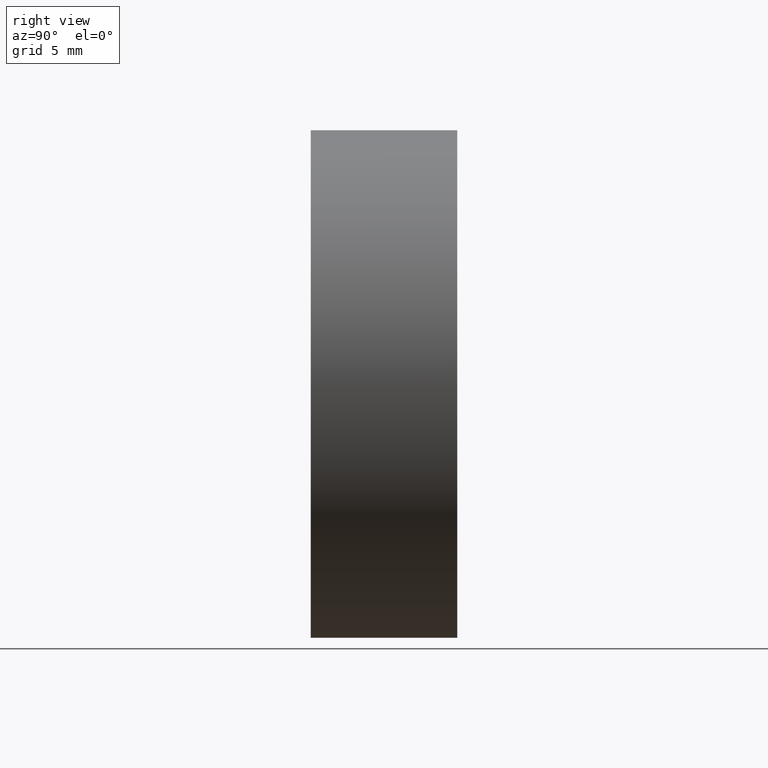
[diagram: clean part render]
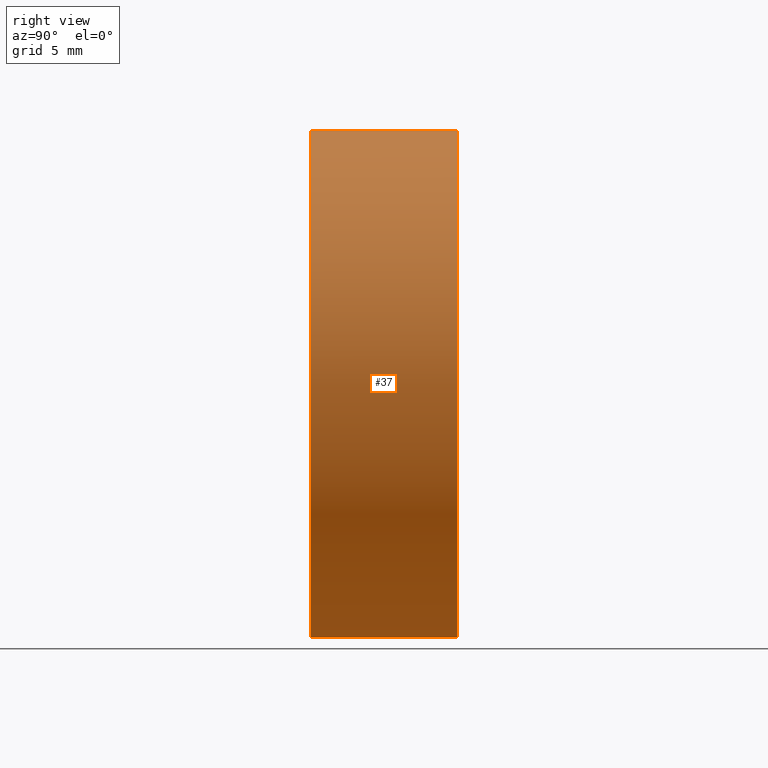
[diagram: same view with one face highlighted and labeled with its STEP entity id]
A machine part, right view. The second image highlights one B-rep face of the part: STEP entity #37.
In plain terms, the highlighted cylindrical surface (partial cylindrical patch) has radius 19.05 mm, axis along (-0, 1, -0).
Its self-contained STEP definition (entity closure, byte-faithful):
#19 = CIRCLE ( 'NONE', #89, 19.05000000000000400 ) ;
#23 = CARTESIAN_POINT ( 'NONE',  ( 0.0000000000000000000, 60.02082041425541100, 0.0000000000000000000 ) ) ;
#31 = DIRECTION ( 'NONE',  ( 0.0000000000000000000, 0.0000000000000000000, 1.000000000000000000 ) ) ;
#37 = ADVANCED_FACE ( 'NONE', ( #198 ), #316, .T. ) ;
#47 = DIRECTION ( 'NONE',  ( 0.0000000000000000000, 0.0000000000000000000, 1.000000000000000000 ) ) ;
#70 = CARTESIAN_POINT ( 'NONE',  ( 0.0000000000000000000, 10.99999999999999600, 0.0000000000000000000 ) ) ;
#76 = CARTESIAN_POINT ( 'NONE',  ( 0.0000000000000000000, 10.99999999999999600, 19.05000000000000400 ) ) ;
#89 = AXIS2_PLACEMENT_3D ( 'NONE', #70, #91, #371 ) ;
#91 = DIRECTION ( 'NONE',  ( -0.0000000000000000000, 1.000000000000000000, -0.0000000000000000000 ) ) ;
#103 = CIRCLE ( 'NONE', #148, 19.05000000000000400 ) ;
#105 = EDGE_LOOP ( 'NONE', ( #422, #248, #424, #339 ) ) ;
#148 = AXIS2_PLACEMENT_3D ( 'NONE', #405, #315, #31 ) ;
#151 = VERTEX_POINT ( 'NONE', #76 ) ;
#160 = DIRECTION ( 'NONE',  ( -0.0000000000000000000, 1.000000000000000000, -0.0000000000000000000 ) ) ;
#172 = CARTESIAN_POINT ( 'NONE',  ( 0.0000000000000000000, 60.02082041425541100, 19.05000000000000400 ) ) ;
#179 = CARTESIAN_POINT ( 'NONE',  ( 2.332952152375708400E-015, 60.02082041425541100, -19.05000000000000400 ) ) ;
#188 = DIRECTION ( 'NONE',  ( -0.0000000000000000000, 1.000000000000000000, -0.0000000000000000000 ) ) ;
#189 = CARTESIAN_POINT ( 'NONE',  ( 0.0000000000000000000, 0.0000000000000000000, 19.05000000000000400 ) ) ;
#195 = DIRECTION ( 'NONE',  ( -0.0000000000000000000, 1.000000000000000000, -0.0000000000000000000 ) ) ;
#198 = FACE_OUTER_BOUND ( 'NONE', #105, .T. ) ;
#218 = CARTESIAN_POINT ( 'NONE',  ( 2.332952152375708400E-015, 10.99999999999999600, -19.05000000000000400 ) ) ;
#248 = ORIENTED_EDGE ( 'NONE', *, *, #379, .T. ) ;
#284 = LINE ( 'NONE', #172, #375 ) ;
#288 = CARTESIAN_POINT ( 'NONE',  ( 2.332952152375708400E-015, 0.0000000000000000000, -19.05000000000000400 ) ) ;
#307 = AXIS2_PLACEMENT_3D ( 'NONE', #23, #160, #47 ) ;
#315 = DIRECTION ( 'NONE',  ( -0.0000000000000000000, 1.000000000000000000, -0.0000000000000000000 ) ) ;
#316 = CYLINDRICAL_SURFACE ( 'NONE', #307, 19.05000000000000400 ) ;
#339 = ORIENTED_EDGE ( 'NONE', *, *, #406, .F. ) ;
#344 = VERTEX_POINT ( 'NONE', #288 ) ;
#371 = DIRECTION ( 'NONE',  ( 0.0000000000000000000, 0.0000000000000000000, 1.000000000000000000 ) ) ;
#374 = VERTEX_POINT ( 'NONE', #189 ) ;
#375 = VECTOR ( 'NONE', #195, 1000.000000000000000 ) ;
#376 = EDGE_CURVE ( 'NONE', #374, #344, #103, .T. ) ;
#379 = EDGE_CURVE ( 'NONE', #344, #387, #393, .T. ) ;
#387 = VERTEX_POINT ( 'NONE', #218 ) ;
#391 = EDGE_CURVE ( 'NONE', #151, #387, #19, .T. ) ;
#393 = LINE ( 'NONE', #179, #417 ) ;
#405 = CARTESIAN_POINT ( 'NONE',  ( 0.0000000000000000000, 0.0000000000000000000, 0.0000000000000000000 ) ) ;
#406 = EDGE_CURVE ( 'NONE', #374, #151, #284, .T. ) ;
#417 = VECTOR ( 'NONE', #188, 1000.000000000000000 ) ;
#422 = ORIENTED_EDGE ( 'NONE', *, *, #376, .T. ) ;
#424 = ORIENTED_EDGE ( 'NONE', *, *, #391, .F. ) ;